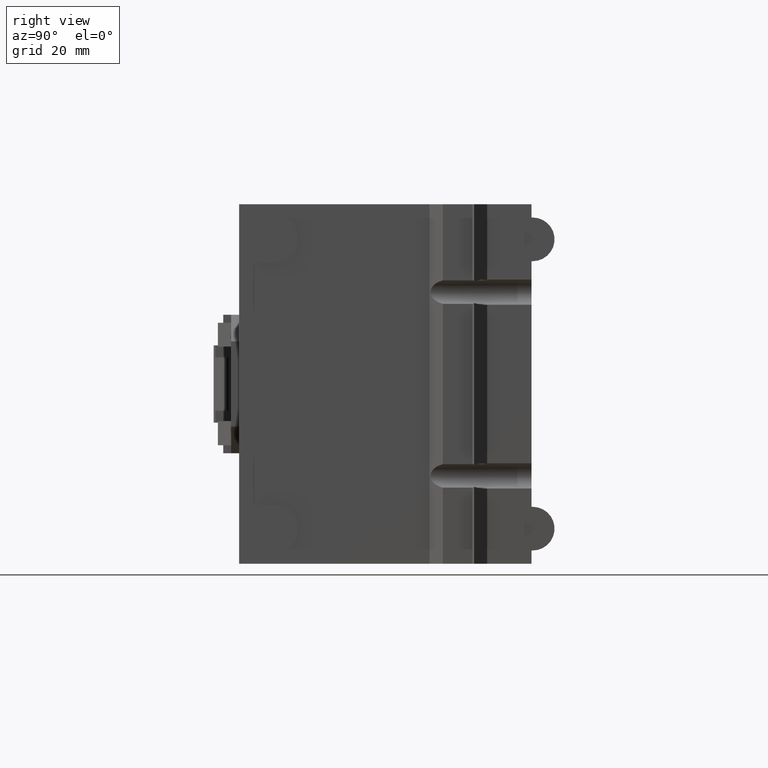
[diagram: clean part render]
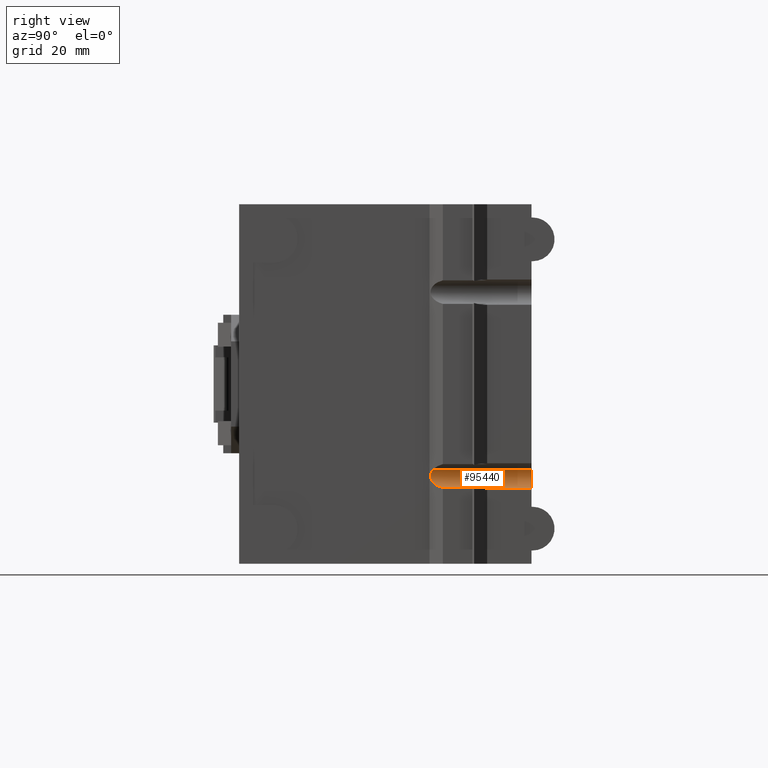
[diagram: same view with one face highlighted and labeled with its STEP entity id]
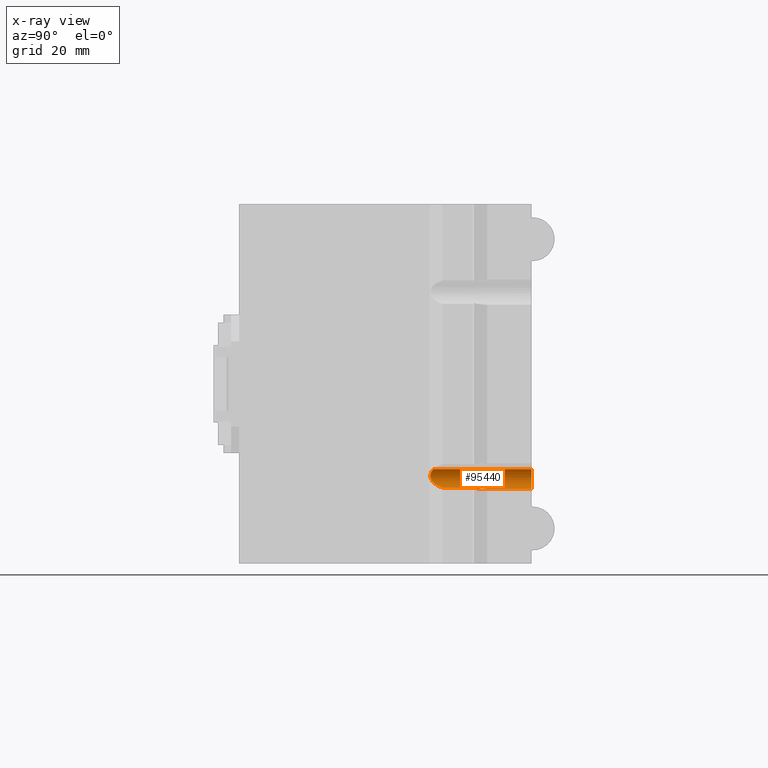
[diagram: x-ray of the same camera — body ghosted, the highlighted face saturated]
A machine part, right view. The second image highlights one B-rep face of the part: STEP entity #95440.
The next image is the same camera in x-ray: the body ghosted, the highlighted face saturated — about 0% of this face is hidden behind the body in this view.
In plain terms, the highlighted cylindrical surface (edge-blend (fillet) strip) has radius 4.75 mm, axis along (0, 1, 0).
Its self-contained STEP definition (entity closure, byte-faithful):
#18500=CARTESIAN_POINT('',(-14.2286361670147,108.75,-158.55));
#18510=VERTEX_POINT('',#18500);
#18540=CARTESIAN_POINT('',(-9.49999999999999,108.75,-159.));
#18550=DIRECTION('',(0.,1.,0.));
#18560=DIRECTION('',(-0.526315789473682,0.,-0.850289180073871));
#18570=AXIS2_PLACEMENT_3D('',#18540,#18550,#18560);
#18580=CIRCLE('',#18570,4.75);
#18590=CARTESIAN_POINT('',(-7.,108.75,-154.961126394649));
#18600=VERTEX_POINT('',#18590);
#18610=EDGE_CURVE('',#18510,#18600,#18580,.T.);
#27360=CARTESIAN_POINT('',(-14.2286361670147,92.084936490486,-158.55));
#27370=VERTEX_POINT('',#27360);
#27400=CARTESIAN_POINT('',(-14.2286361670147,-23.43060520995,-158.55));
#27410=DIRECTION('',(0.,1.,0.));
#27420=VECTOR('',#27410,1.);
#27430=LINE('',#27400,#27420);
#27440=EDGE_CURVE('',#27370,#18510,#27430,.T.);
#38720=CARTESIAN_POINT('',(-9.49999999999999,78.1455383140797,-159.));
#38730=DIRECTION('',(-0.,-0.544639035015019,-0.838670567945429));
#38740=DIRECTION('',(0.,-0.838670567945429,0.544639035015019));
#38750=AXIS2_PLACEMENT_3D('',#38720,#38730,#38740);
#38760=ELLIPSE('',#38750,8.72137267918928,4.75);
#38770=CARTESIAN_POINT('',(-7.,71.9262183559243,-154.961126394649));
#38780=VERTEX_POINT('',#38770);
#38810=CARTESIAN_POINT('',(-13.9184850009308,75.4609170961233,
-157.2565865962));
#38820=VERTEX_POINT('',#38810);
#38830=EDGE_CURVE('',#38780,#38820,#38760,.T.);
#39550=CARTESIAN_POINT('',(-13.609263004209,87.1788475772626,
-161.382531754718));
#39560=VERTEX_POINT('',#39550);
#39590=CARTESIAN_POINT('',(-9.49999999999999,91.3055136270801,-159.));
#39600=DIRECTION('',(0.,0.500000000000017,-0.866025403784429));
#39610=DIRECTION('',(0.,-0.866025403784429,-0.500000000000017));
#39620=AXIS2_PLACEMENT_3D('',#39590,#39600,#39610);
#39630=ELLIPSE('',#39620,9.49999999999968,4.75);
#39640=EDGE_CURVE('',#39560,#27370,#39630,.T.);
#39810=CARTESIAN_POINT('',(-14.068643124602,86.5538475772758,
-160.30000000001));
#39820=VERTEX_POINT('',#39810);
#39850=CARTESIAN_POINT('',(-9.49999999999999,85.8032922273234,-159.));
#39860=DIRECTION('',(0.,0.866025403784429,0.500000000000017));
#39870=DIRECTION('',(0.,-0.500000000000017,0.866025403784429));
#39880=AXIS2_PLACEMENT_3D('',#39850,#39860,#39870);
#39890=ELLIPSE('',#39880,5.4848275573015,4.75);
#39900=EDGE_CURVE('',#39560,#39820,#39890,.T.);
#40050=CARTESIAN_POINT('',(-13.935369206729,91.75,-157.3));
#40060=VERTEX_POINT('',#40050);
#40090=CARTESIAN_POINT('',(-9.49999999999999,88.8055136271331,-159.));
#40100=DIRECTION('',(0.,0.500000000000017,-0.866025403784429));
#40110=DIRECTION('',(0.,-0.866025403784429,-0.500000000000017));
#40120=AXIS2_PLACEMENT_3D('',#40090,#40100,#40110);
#40130=ELLIPSE('',#40120,9.49999999999968,4.75);
#40140=EDGE_CURVE('',#39820,#40060,#40130,.T.);
#40260=CARTESIAN_POINT('',(-9.49999999999999,91.75,-159.));
#40270=DIRECTION('',(0.,1.,0.));
#40280=DIRECTION('',(-0.526315789473682,0.,-0.850289180073871));
#40290=AXIS2_PLACEMENT_3D('',#40260,#40270,#40280);
#40300=CIRCLE('',#40290,4.75);
#40310=CARTESIAN_POINT('',(-13.9184850009308,91.75,-157.2565865962));
#40320=VERTEX_POINT('',#40310);
#40330=EDGE_CURVE('',#40060,#40320,#40300,.T.);
#40480=CARTESIAN_POINT('',(-13.9184850009308,-23.43060520995,
-157.2565865962));
#40490=DIRECTION('',(0.,1.,0.));
#40500=VECTOR('',#40490,1.);
#40510=LINE('',#40480,#40500);
#40520=EDGE_CURVE('',#38820,#40320,#40510,.T.);
#93550=CARTESIAN_POINT('',(-9.49999999999999,-23.43060520995,-159.));
#93560=DIRECTION('',(0.,1.,0.));
#93570=DIRECTION('',(-0.526315789473682,0.,-0.850289180073871));
#93580=AXIS2_PLACEMENT_3D('',#93550,#93560,#93570);
#93590=CYLINDRICAL_SURFACE('',#93580,4.75);
#94780=CARTESIAN_POINT('',(-7.,-23.43060520995,-154.961126394649));
#94790=DIRECTION('',(0.,1.,0.));
#94800=VECTOR('',#94790,1.);
#94810=LINE('',#94780,#94800);
#94820=EDGE_CURVE('',#38780,#18600,#94810,.T.);
#95330=ORIENTED_EDGE('',*,*,#18610,.T.);
#95340=ORIENTED_EDGE('',*,*,#27440,.T.);
#95350=ORIENTED_EDGE('',*,*,#39640,.T.);
#95360=ORIENTED_EDGE('',*,*,#39900,.F.);
#95370=ORIENTED_EDGE('',*,*,#40140,.F.);
#95380=ORIENTED_EDGE('',*,*,#40330,.F.);
#95390=ORIENTED_EDGE('',*,*,#40520,.T.);
#95400=ORIENTED_EDGE('',*,*,#38830,.T.);
#95410=ORIENTED_EDGE('',*,*,#94820,.F.);
#95420=EDGE_LOOP('',(#95410,#95400,#95390,#95380,#95370,#95360,#95350,
#95340,#95330));
#95430=FACE_OUTER_BOUND('',#95420,.T.);
#95440=ADVANCED_FACE('',(#95430),#93590,.F.);